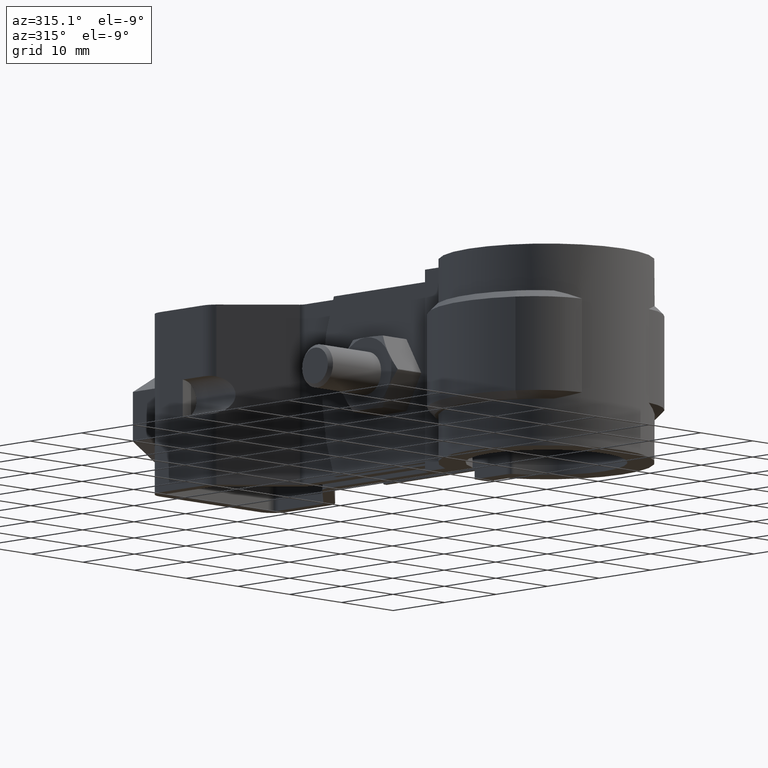
[diagram: clean part render]
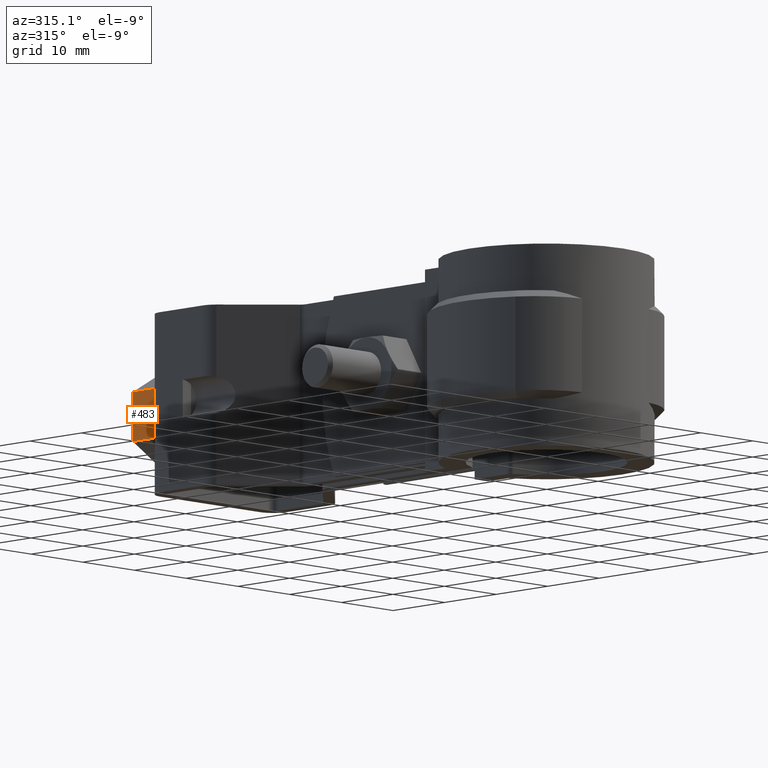
[diagram: same view with one face highlighted and labeled with its STEP entity id]
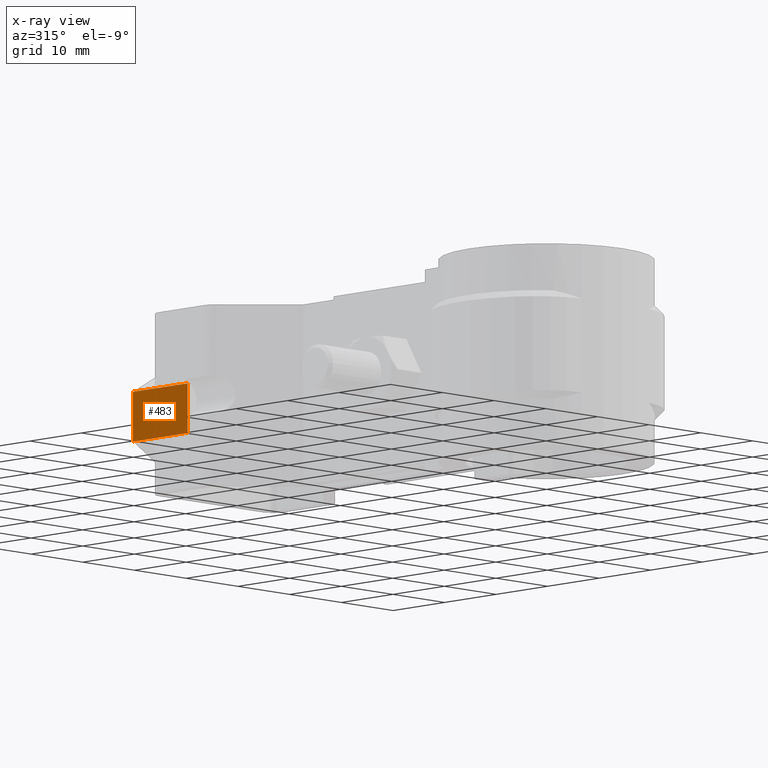
[diagram: x-ray of the same camera — body ghosted, the highlighted face saturated]
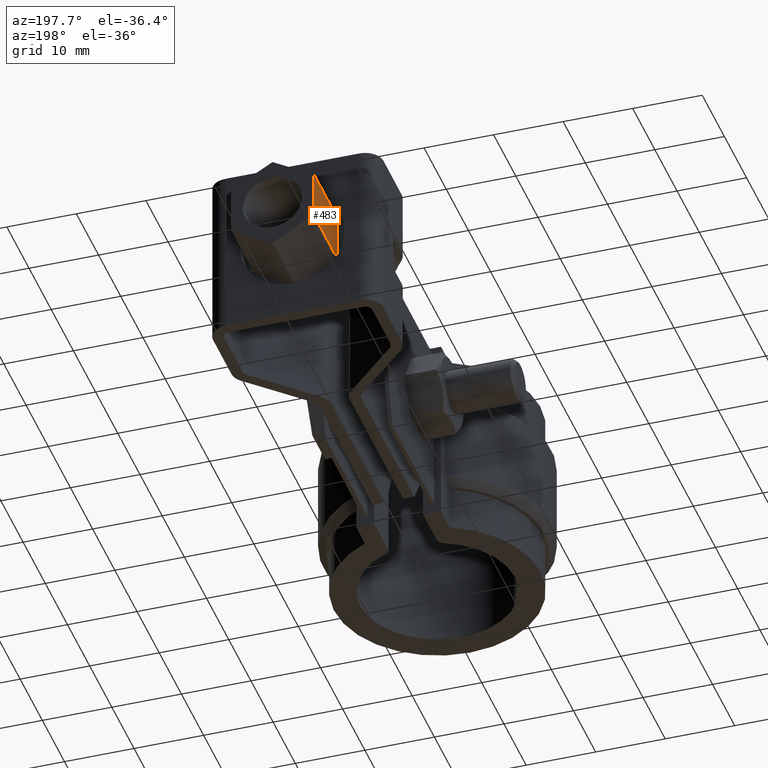
[diagram: same view with one face highlighted and labeled with its STEP entity id]
A machine part, auxiliary view. The second image highlights one B-rep face of the part: STEP entity #483.
The next image is the same camera in x-ray: the body ghosted, the highlighted face saturated — about 0% of this face is hidden behind the body in this view.
A second angle (auxiliary view) of the same face is appended — the face is thin or edge-on in the first view.
In plain terms, the highlighted planar face has unit normal (1, -0, 0).
Its self-contained STEP definition (entity closure, byte-faithful):
#483 = ADVANCED_FACE( '', ( #880 ), #881, .F. );
#880 = FACE_OUTER_BOUND( '', #1709, .T. );
#881 = PLANE( '', #1710 );
#1709 = EDGE_LOOP( '', ( #4186, #4187, #4188, #4189 ) );
#1710 = AXIS2_PLACEMENT_3D( '', #4190, #4191, #4192 );
#4186 = ORIENTED_EDGE( '', *, *, #4953, .T. );
#4187 = ORIENTED_EDGE( '', *, *, #4963, .F. );
#4188 = ORIENTED_EDGE( '', *, *, #4964, .F. );
#4189 = ORIENTED_EDGE( '', *, *, #4958, .T. );
#4190 = CARTESIAN_POINT( '', ( -5.94999999979949, 74.2980146713341, -15.9352340877288 ) );
#4191 = DIRECTION( '', ( 1.00000000000000, -8.53589041550480E-013, 7.65368227544786E-013 ) );
#4192 = DIRECTION( '', ( 7.65368227624555E-013, 9.34504695848679E-011, -1.00000000000000 ) );
#4953 = EDGE_CURVE( '', #5850, #5848, #5851, .T. );
#4958 = EDGE_CURVE( '', #5858, #5850, #5859, .T. );
#4963 = EDGE_CURVE( '', #5867, #5848, #5868, .T. );
#4964 = EDGE_CURVE( '', #5858, #5867, #5869, .T. );
#5848 = VERTEX_POINT( '', #8431 );
#5850 = VERTEX_POINT( '', #8434 );
#5851 = LINE( '', #8435, #8436 );
#5858 = VERTEX_POINT( '', #8447 );
#5859 = LINE( '', #8448, #8449 );
#5867 = VERTEX_POINT( '', #8458 );
#5868 = LINE( '', #8459, #8460 );
#5869 = LINE( '', #8461, #8462 );
#8431 = CARTESIAN_POINT( '', ( -5.94999999981379, 63.6980146706921, -9.06476588536280 ) );
#8434 = CARTESIAN_POINT( '', ( -5.94999999980853, 63.6980146713341, -15.9352340887193 ) );
#8435 = CARTESIAN_POINT( '', ( -5.94999999980854, 63.6980146713341, -15.9352340887193 ) );
#8436 = VECTOR( '', #9356, 1000.00000000000 );
#8447 = CARTESIAN_POINT( '', ( -5.94999999979948, 74.2980146713341, -15.9352340877288 ) );
#8448 = CARTESIAN_POINT( '', ( -5.94999999979948, 74.2980146713341, -15.9352340877288 ) );
#8449 = VECTOR( '', #9361, 1000.00000000000 );
#8458 = CARTESIAN_POINT( '', ( -5.94999999980475, 74.2980146706921, -9.06476588437223 ) );
#8459 = CARTESIAN_POINT( '', ( -5.94999999980475, 74.2980146706921, -9.06476588437223 ) );
#8460 = VECTOR( '', #9372, 1000.00000000000 );
#8461 = CARTESIAN_POINT( '', ( -5.94999999979949, 74.2980146713341, -15.9352340877288 ) );
#8462 = VECTOR( '', #9373, 1000.00000000000 );
#9356 = DIRECTION( '', ( -7.65423738775786E-013, -9.34504695848679E-011, 1.00000000000000 ) );
#9361 = DIRECTION( '', ( -8.53589041478956E-013, -1.00000000000000, -9.34504695848685E-011 ) );
#9372 = DIRECTION( '', ( -8.53589041478956E-013, -1.00000000000000, -9.34504695848685E-011 ) );
#9373 = DIRECTION( '', ( -7.65423738775786E-013, -9.34504695848679E-011, 1.00000000000000 ) );